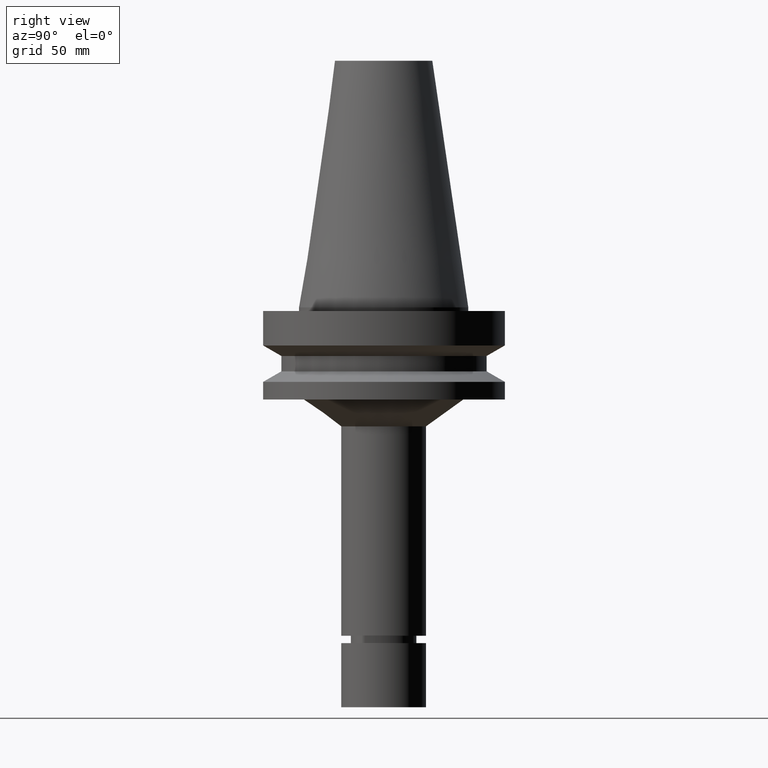
[diagram: clean part render]
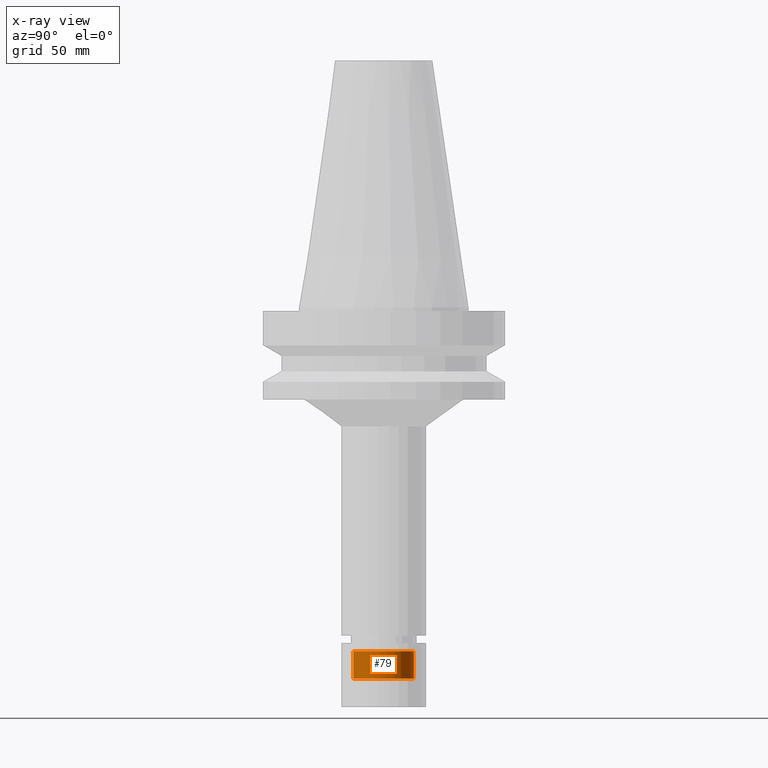
[diagram: x-ray — body ghosted, one internal face saturated and labeled with its STEP entity id]
A machine part, right view, then the same camera in x-ray: the body is ghosted and one INTERNAL B-rep face — a face not visible from any outside direction — is saturated and labeled: STEP entity #79.
In plain terms, the highlighted cylindrical surface (bore or boss wall) has radius 12.5 mm, axis along (-0, -0, 1).
Its self-contained STEP definition (entity closure, byte-faithful):
#79=ADVANCED_FACE('Unnamed[1]',(#206,#207),#208,.T.);
#116=EDGE_CURVE('Unnamed[1]',#263,#263,#264,.T.);
#138=EDGE_CURVE('Unnamed[1]',#297,#297,#298,.T.);
#206=FACE_BOUND('',#383,.T.);
#207=FACE_BOUND('',#384,.T.);
#208=CYLINDRICAL_SURFACE('',#385,12.4999999999999);
#263=VERTEX_POINT('',#454);
#264=CIRCLE('',#455,12.4999999999998);
#297=VERTEX_POINT('',#497);
#298=CIRCLE('',#498,12.4999999999999);
#383=EDGE_LOOP('',(#586));
#384=EDGE_LOOP('',(#587));
#385=AXIS2_PLACEMENT_3D('',#588,#589,#590);
#454=CARTESIAN_POINT('',(9.38659588512361E-015,12.4999999999998,-153.294744111672));
#455=AXIS2_PLACEMENT_3D('',#648,#649,#650);
#497=CARTESIAN_POINT('',(8.6888491476817E-015,12.4999999999999,-141.899675134597));
#498=AXIS2_PLACEMENT_3D('',#686,#687,#688);
#586=ORIENTED_EDGE('',*,*,#138,.F.);
#587=ORIENTED_EDGE('',*,*,#116,.T.);
#588=CARTESIAN_POINT('',(9.03772251640266E-015,1.98280917353639E-014,-147.597209623135));
#589=DIRECTION('',(-6.12323399573677E-017,-2.72265846766674E-017,1.0));
#590=DIRECTION('',(-6.49430021956864E-033,1.0,2.72265846766674E-017));
#648=CARTESIAN_POINT('',(9.38659588512361E-015,1.99832161405641E-014,-153.294744111672));
#649=DIRECTION('',(-6.12323399573677E-017,-2.72265846766675E-017,1.0));
#650=DIRECTION('',(-6.49430021956867E-033,1.0,2.72265846766675E-017));
#686=CARTESIAN_POINT('',(8.6888491476817E-015,1.96729673301636E-014,-141.899675134597));
#687=DIRECTION('',(-6.12323399573677E-017,-2.72265846766673E-017,1.0));
#688=DIRECTION('',(-6.49430021956861E-033,1.0,2.72265846766673E-017));